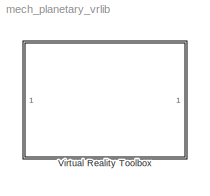
MODEL mech_planetary_vrlib
KIND library
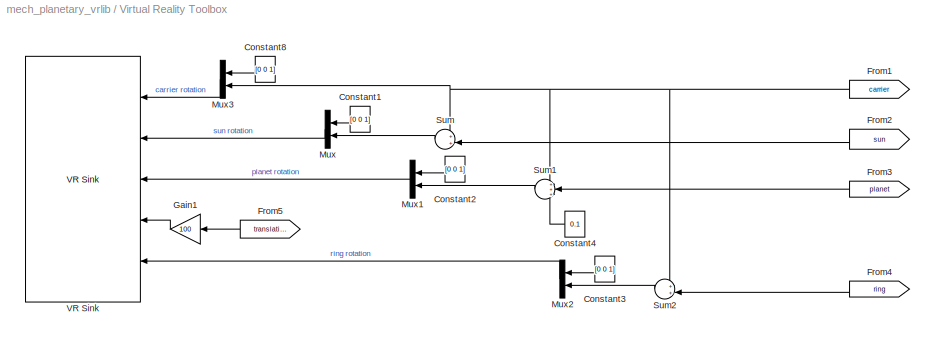
BLOCK [SubSystem] Virtual Reality Toolbox
  FunctionWithSeparateData = off
  MaskDisplay = disp(sprintf('Double-click to open\\nVirtual Reality Toolbox viewer'))
  MaskHideContents = off
  MaskIconFrame = on
  MaskIconOpaque = on
  MaskIconRotate = none
  MaskIconUnits = autoscale
  MinAlgLoopOccurrences = off
  Opaque = off
  Ports = []
  PropExecContextOutsideSubsystem = off
  RTWSystemCode = Auto
  RequestExecContextInheritance = off
BLOCK [Constant] Virtual Reality Toolbox/Constant1
  OutDataType = sfix(16)
  OutScaling = 2^0
  Value = [0 0 1]
BLOCK [Constant] Virtual Reality Toolbox/Constant2
  OutDataType = sfix(16)
  OutScaling = 2^0
  Value = [0 0 1]
BLOCK [Constant] Virtual Reality Toolbox/Constant3
  OutDataType = sfix(16)
  OutScaling = 2^0
  Value = [0 0 1]
BLOCK [Constant] Virtual Reality Toolbox/Constant4
  OutDataType = sfix(16)
  OutScaling = 2^0
  Value = 0.1
BLOCK [Constant] Virtual Reality Toolbox/Constant8
  OutDataType = sfix(16)
  OutScaling = 2^0
  Value = [0 0 1]
BLOCK [From] Virtual Reality Toolbox/From1
  CloseFcn = tagdialog Close
  GotoTag = carrier
BLOCK [From] Virtual Reality Toolbox/From2
  CloseFcn = tagdialog Close
  GotoTag = sun
BLOCK [From] Virtual Reality Toolbox/From3
  CloseFcn = tagdialog Close
  GotoTag = planet
BLOCK [From] Virtual Reality Toolbox/From4
  CloseFcn = tagdialog Close
  GotoTag = ring
BLOCK [From] Virtual Reality Toolbox/From5
  CloseFcn = tagdialog Close
  GotoTag = translation
BLOCK [Gain] Virtual Reality Toolbox/Gain1
  Gain = 100
  OutDataType = sfix(16)
  OutScaling = 2^0
  ParameterDataType = sfix(16)
  ParameterScaling = 2^0
BLOCK [Mux] Virtual Reality Toolbox/Mux
  DisplayOption = bar
  Inputs = 2
  Ports = [2, 1]
BLOCK [Mux] Virtual Reality Toolbox/Mux1
  DisplayOption = bar
  Inputs = 2
  Ports = [2, 1]
BLOCK [Mux] Virtual Reality Toolbox/Mux2
  DisplayOption = bar
  Inputs = 2
  Ports = [2, 1]
BLOCK [Mux] Virtual Reality Toolbox/Mux3
  DisplayOption = bar
  Inputs = 2
  Ports = [2, 1]
BLOCK [Sum] Virtual Reality Toolbox/Sum
  IconShape = round
  Inputs = ++|
  OutDataType = sfix(16)
  OutScaling = 2^0
  Ports = [2, 1]
BLOCK [Sum] Virtual Reality Toolbox/Sum1
  IconShape = round
  Inputs = +++
  OutDataType = sfix(16)
  OutScaling = 2^0
  Ports = [3, 1]
BLOCK [Sum] Virtual Reality Toolbox/Sum2
  IconShape = round
  Inputs = ++|
  OutDataType = sfix(16)
  OutScaling = 2^0
  Ports = [2, 1]
BLOCK [Reference] Virtual Reality Toolbox/VR Sink  REF=vrlib/VR Sink
  AutoView = off
  FieldsWritten = carrier.rotation#drum.rotation#planet.rotation#planet.translation#ring.rotation
  FigureProperties = {}
  Ports = [5]
  RemoteChange = off
  RemoteView = off
  SampleTime = 0.1
  SourceBlock = vrlib/VR Sink
  SourceType = Virtual Reality Sink
  ViewEnable = on
  WorldDescription = VR Planetary Gear Model
  WorldFileName = mech_planetary_world.wrl
LINE Virtual Reality Toolbox/Constant1:1 -> Virtual Reality Toolbox/Mux:1
LINE Virtual Reality Toolbox/Constant2:1 -> Virtual Reality Toolbox/Mux1:1
LINE Virtual Reality Toolbox/Constant3:1 -> Virtual Reality Toolbox/Mux2:1
LINE Virtual Reality Toolbox/Constant4:1 -> Virtual Reality Toolbox/Sum1:3
LINE Virtual Reality Toolbox/Constant8:1 -> Virtual Reality Toolbox/Mux3:1
NET Virtual Reality Toolbox/From1:1 -> Virtual Reality Toolbox/Mux3:2, Virtual Reality Toolbox/Sum1:1, Virtual Reality Toolbox/Sum2:1, Virtual Reality Toolbox/Sum:1
LINE Virtual Reality Toolbox/From2:1 -> Virtual Reality Toolbox/Sum:2
LINE Virtual Reality Toolbox/From3:1 -> Virtual Reality Toolbox/Sum1:2
LINE Virtual Reality Toolbox/From4:1 -> Virtual Reality Toolbox/Sum2:2
LINE Virtual Reality Toolbox/From5:1 -> Virtual Reality Toolbox/Gain1:1
LINE Virtual Reality Toolbox/Gain1:1 -> Virtual Reality Toolbox/VR Sink:4
LINE Virtual Reality Toolbox/Mux1:1 -> Virtual Reality Toolbox/VR Sink:3
LINE Virtual Reality Toolbox/Mux2:1 -> Virtual Reality Toolbox/VR Sink:5
LINE Virtual Reality Toolbox/Mux3:1 -> Virtual Reality Toolbox/VR Sink:1
LINE Virtual Reality Toolbox/Mux:1 -> Virtual Reality Toolbox/VR Sink:2
LINE Virtual Reality Toolbox/Sum1:1 -> Virtual Reality Toolbox/Mux1:2
LINE Virtual Reality Toolbox/Sum2:1 -> Virtual Reality Toolbox/Mux2:2
LINE Virtual Reality Toolbox/Sum:1 -> Virtual Reality Toolbox/Mux:2
note: NET lines group one-source signal fan-out (src -> all destinations, sorted); 1:1 wires keep LINE
